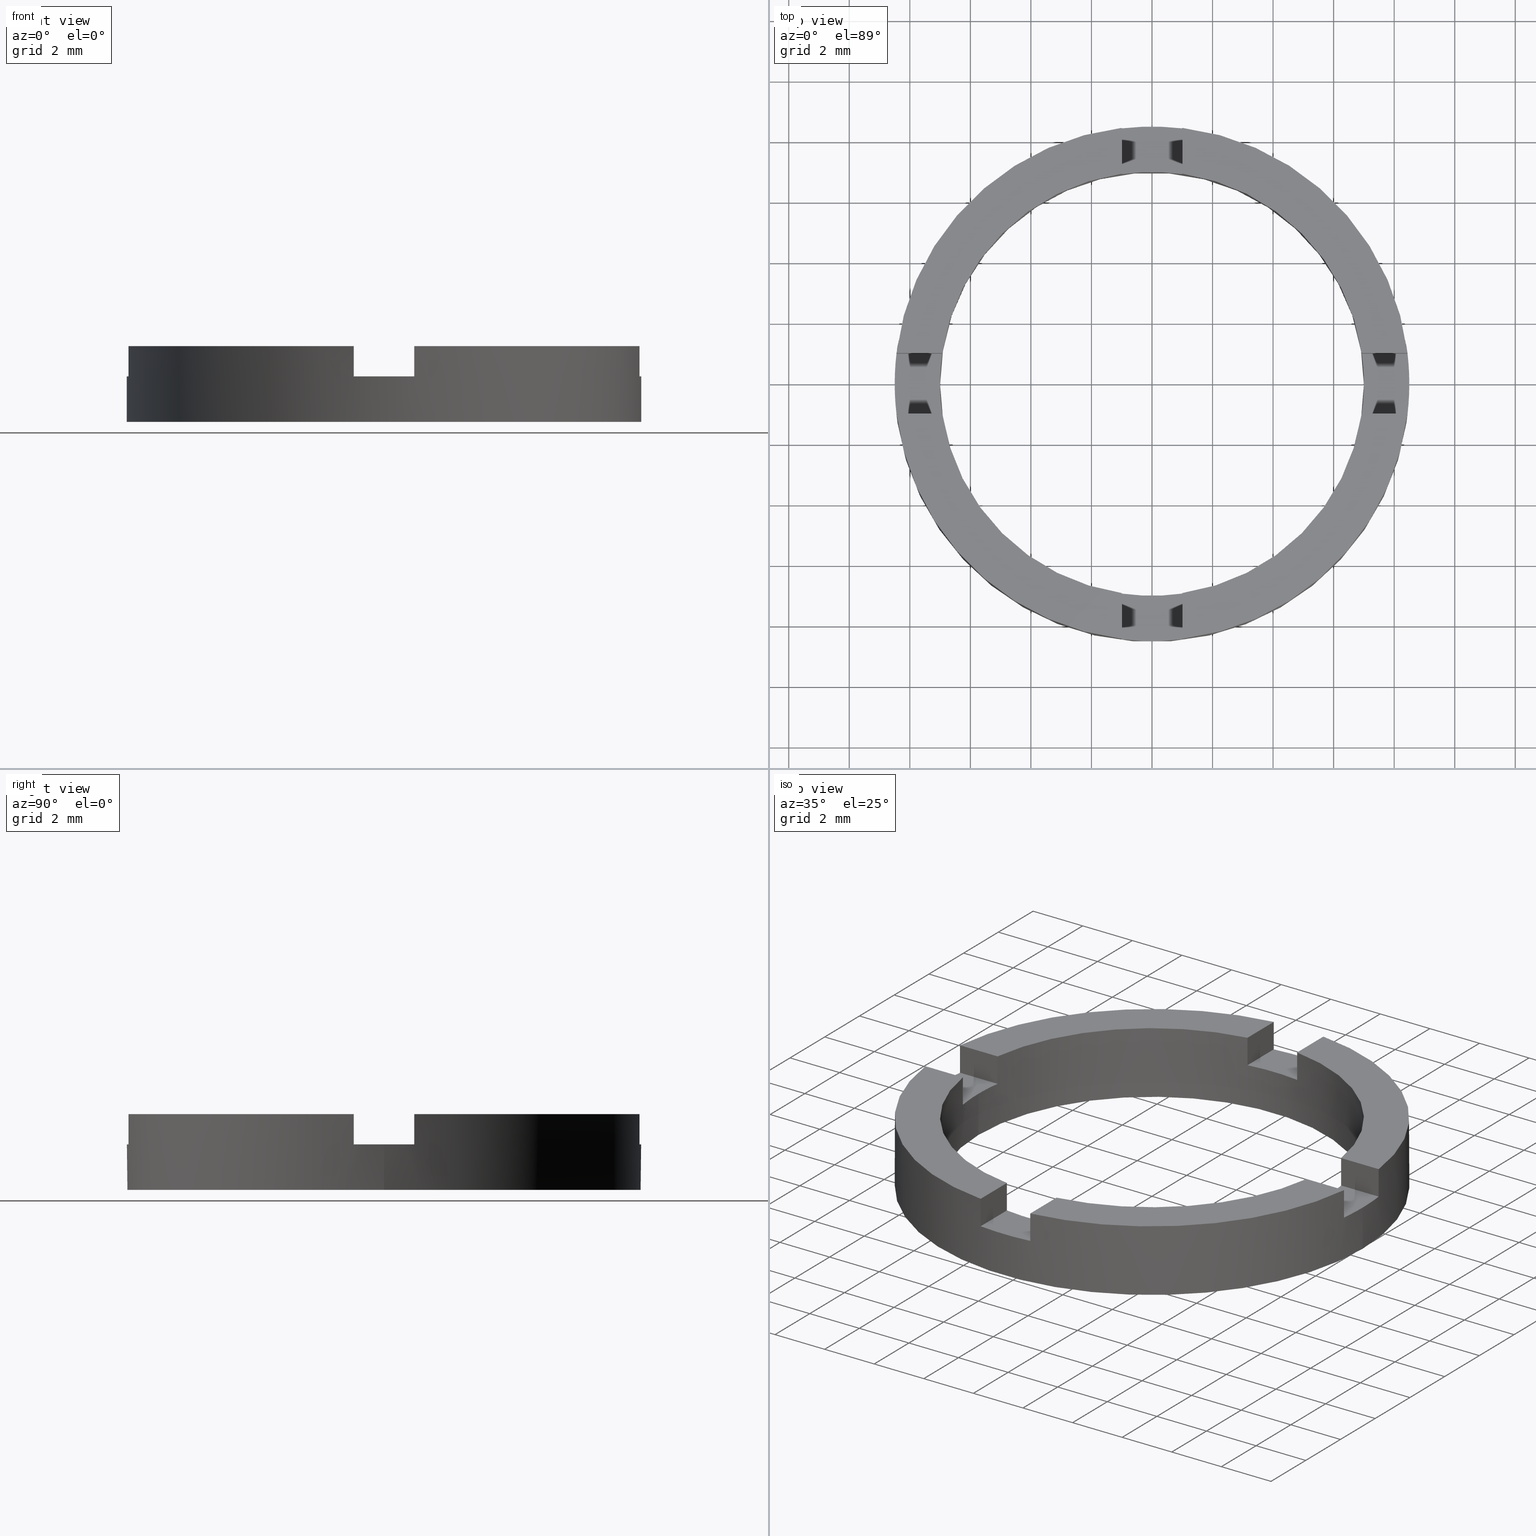
[diagram: canonical four-view strip — front | top / right | iso, engineering-drawing reading convention]
A machine part, canonical four-view strip (front | top / right | iso — engineering-drawing reading convention). The complete STEP part file that produces these views, byte-faithful:
ISO-10303-21;
HEADER;
FILE_DESCRIPTION (( 'STEP AP203' ),
    '1' );
FILE_NAME ('514041.step',
    '2024-12-26T02:31:54',
    ( 'MSI' ),
    ( '' ),
    'SwSTEP 2.0',
    'SolidWorks 2020',
    '' );
FILE_SCHEMA (( 'CONFIG_CONTROL_DESIGN' ));
ENDSEC;

DATA;
#1 = LINE ( 'NONE', #619, #499 ) ;
#2 = DATE_AND_TIME ( #285, #230 ) ;
#3 = ORIENTED_EDGE ( 'NONE', *, *, #400, .F. ) ;
#4 = CARTESIAN_POINT ( 'NONE',  ( 3.750063984832210975E-15, 0.9999999999999988898, 2.500000000000000000 ) ) ;
#5 = CIRCLE ( 'NONE', #361, 8.500000000000000000 ) ;
#6 = LINE ( 'NONE', #130, #551 ) ;
#7 = ORIENTED_EDGE ( 'NONE', *, *, #138, .F. ) ;
#8 = VERTEX_POINT ( 'NONE', #76 ) ;
#9 = LINE ( 'NONE', #83, #497 ) ;
#10 = ORIENTED_EDGE ( 'NONE', *, *, #91, .F. ) ;
#11 = ORIENTED_EDGE ( 'NONE', *, *, #320, .T. ) ;
#12 = FACE_OUTER_BOUND ( 'NONE', #104, .T. ) ;
#13 = ORIENTED_EDGE ( 'NONE', *, *, #191, .T. ) ;
#14 = CARTESIAN_POINT ( 'NONE',  ( -0.9999999999999986677, 0.000000000000000000, 2.500000000000000000 ) ) ;
#15 = EDGE_LOOP ( 'NONE', ( #225, #719 ) ) ;
#16 = VERTEX_POINT ( 'NONE', #217 ) ;
#17 = DIRECTION ( 'NONE',  ( 0.000000000000000000, 0.000000000000000000, 1.000000000000000000 ) ) ;
#18 = ORIENTED_EDGE ( 'NONE', *, *, #456, .F. ) ;
#19 = PERSON_AND_ORGANIZATION ( #97, #280 ) ;
#20 = EDGE_CURVE ( 'NONE', #660, #282, #223, .T. ) ;
#21 = EDGE_LOOP ( 'NONE', ( #253, #698, #503, #543 ) ) ;
#22 = VECTOR ( 'NONE', #57, 1000.000000000000000 ) ;
#23 = LINE ( 'NONE', #109, #279 ) ;
#24 = APPROVAL_PERSON_ORGANIZATION ( #542, #183, #639 ) ;
#25 = FACE_OUTER_BOUND ( 'NONE', #667, .T. ) ;
#26 = APPROVAL_DATE_TIME ( #260, #183 ) ;
#27 = DIRECTION ( 'NONE',  ( 1.000000000000000000, 0.000000000000000000, -0.000000000000000000 ) ) ;
#28 = LINE ( 'NONE', #4, #589 ) ;
#29 = LINE ( 'NONE', #339, #572 ) ;
#30 = LINE ( 'NONE', #467, #557 ) ;
#31 = LINE ( 'NONE', #349, #299 ) ;
#32 = CARTESIAN_POINT ( 'NONE',  ( 6.928203230275513214, 0.9999999999999729106, 1.500000000000000000 ) ) ;
#33 = AXIS2_PLACEMENT_3D ( 'NONE', #209, #325, #688 ) ;
#34 = VECTOR ( 'NONE', #391, 1000.000000000000000 ) ;
#35 = LINE ( 'NONE', #210, #66 ) ;
#36 = LINE ( 'NONE', #652, #42 ) ;
#37 = VECTOR ( 'NONE', #564, 1000.000000000000000 ) ;
#38 = APPROVAL_DATE_TIME ( #579, #122 ) ;
#39 = DATE_TIME_ROLE ( 'classification_date' ) ;
#40 = FACE_OUTER_BOUND ( 'NONE', #779, .T. ) ;
#41 = CIRCLE ( 'NONE', #307, 8.500000000000000000 ) ;
#42 = VECTOR ( 'NONE', #754, 1000.000000000000000 ) ;
#43 = ADVANCED_FACE ( 'NONE', ( #276 ), #560, .T. ) ;
#44 = LINE ( 'NONE', #125, #329 ) ;
#45 = AXIS2_PLACEMENT_3D ( 'NONE', #691, #317, #756 ) ;
#46 = LINE ( 'NONE', #192, #51 ) ;
#47 = VECTOR ( 'NONE', #82, 1000.000000000000000 ) ;
#48 = CIRCLE ( 'NONE', #627, 8.500000000000000000 ) ;
#49 = CIRCLE ( 'NONE', #725, 7.000000000000000000 ) ;
#50 = DIRECTION ( 'NONE',  ( -0.000000000000000000, -0.000000000000000000, 1.000000000000000000 ) ) ;
#51 = VECTOR ( 'NONE', #290, 1000.000000000000000 ) ;
#52 = LINE ( 'NONE', #421, #47 ) ;
#53 = EDGE_CURVE ( 'NONE', #501, #660, #1, .T. ) ;
#54 = VECTOR ( 'NONE', #136, 1000.000000000000000 ) ;
#55 = DIRECTION ( 'NONE',  ( -0.000000000000000000, 0.000000000000000000, 1.000000000000000000 ) ) ;
#56 = LINE ( 'NONE', #383, #308 ) ;
#57 = DIRECTION ( 'NONE',  ( -0.000000000000000000, -0.000000000000000000, 1.000000000000000000 ) ) ;
#58 = CIRCLE ( 'NONE', #703, 8.500000000000000000 ) ;
#59 = ADVANCED_FACE ( 'NONE', ( #268 ), #777, .T. ) ;
#60 = CARTESIAN_POINT ( 'NONE',  ( 0.000000000000000000, 0.000000000000000000, 1.500000000000000000 ) ) ;
#61 = CIRCLE ( 'NONE', #655, 7.000000000000000000 ) ;
#62 = CIRCLE ( 'NONE', #77, 8.500000000000000000 ) ;
#63 = CARTESIAN_POINT ( 'NONE',  ( 0.000000000000000000, 0.000000000000000000, 2.500000000000000000 ) ) ;
#64 = LINE ( 'NONE', #414, #348 ) ;
#65 = CIRCLE ( 'NONE', #172, 8.500000000000000000 ) ;
#66 = VECTOR ( 'NONE', #642, 1000.000000000000000 ) ;
#67 = AXIS2_PLACEMENT_3D ( 'NONE', #710, #427, #463 ) ;
#68 = ADVANCED_FACE ( 'NONE', ( #284 ), #378, .T. ) ;
#69 = EDGE_CURVE ( 'NONE', #524, #740, #749, .T. ) ;
#70 = LINE ( 'NONE', #410, #72 ) ;
#71 = CARTESIAN_POINT ( 'NONE',  ( 0.000000000000000000, 0.000000000000000000, 2.500000000000000000 ) ) ;
#72 = VECTOR ( 'NONE', #418, 1000.000000000000000 ) ;
#73 = EDGE_LOOP ( 'NONE', ( #3, #113, #111, #278, #395, #726, #7, #535, #750, #738, #766, #270 ) ) ;
#74 = ADVANCED_FACE ( 'NONE', ( #239 ), #643, .F. ) ;
#75 = CARTESIAN_POINT ( 'NONE',  ( 0.000000000000000000, 0.000000000000000000, 2.500000000000000000 ) ) ;
#76 = CARTESIAN_POINT ( 'NONE',  ( -8.500000000000000000, 0.000000000000000000, 0.000000000000000000 ) ) ;
#77 = AXIS2_PLACEMENT_3D ( 'NONE', #300, #55, #103 ) ;
#78 = DIRECTION ( 'NONE',  ( 0.000000000000000000, 0.000000000000000000, 1.000000000000000000 ) ) ;
#79 = DIRECTION ( 'NONE',  ( 1.000000000000000000, 0.000000000000000000, -0.000000000000000000 ) ) ;
#80 = DIRECTION ( 'NONE',  ( -0.000000000000000000, -0.000000000000000000, -1.000000000000000000 ) ) ;
#81 = CARTESIAN_POINT ( 'NONE',  ( 0.000000000000000000, 0.000000000000000000, 1.500000000000000000 ) ) ;
#82 = DIRECTION ( 'NONE',  ( 1.000000000000000000, -3.737308665155915423E-15, 0.000000000000000000 ) ) ;
#83 = CARTESIAN_POINT ( 'NONE',  ( -8.500000000000000000, 0.000000000000000000, 2.500000000000000000 ) ) ;
#84 = DIRECTION ( 'NONE',  ( 0.000000000000000000, 1.000000000000000000, -0.000000000000000000 ) ) ;
#85 = CC_DESIGN_APPROVAL ( #189, ( #159 ) ) ;
#86 = EDGE_CURVE ( 'NONE', #145, #201, #23, .T. ) ;
#87 = PLANE ( 'NONE',  #291 ) ;
#88 = CARTESIAN_POINT ( 'NONE',  ( 7.000000000000000000, 8.572527594031473190E-16, 0.000000000000000000 ) ) ;
#89 = CARTESIAN_POINT ( 'NONE',  ( 0.000000000000000000, 0.000000000000000000, 0.000000000000000000 ) ) ;
#90 = CC_DESIGN_SECURITY_CLASSIFICATION ( #438, ( #159 ) ) ;
#91 = EDGE_CURVE ( 'NONE', #502, #532, #550, .T. ) ;
#92 = EDGE_CURVE ( 'NONE', #241, #110, #505, .T. ) ;
#93 = CARTESIAN_POINT ( 'NONE',  ( 6.928203230275513214, 0.9999999999999729106, 2.500000000000000000 ) ) ;
#94 = APPROVAL_STATUS ( 'not_yet_approved' ) ;
#95 = EDGE_CURVE ( 'NONE', #532, #496, #243, .T. ) ;
#96 = EDGE_CURVE ( 'NONE', #522, #553, #778, .T. ) ;
#97 = PERSON ( 'δָ��', 'δָ��', 'δָ��', ('δָ��'), ('δָ��'), ('δָ��') ) ;
#98 = ADVANCED_FACE ( 'NONE', ( #533 ), #426, .T. ) ;
#99 = EDGE_CURVE ( 'NONE', #127, #759, #488, .T. ) ;
#100 = CARTESIAN_POINT ( 'NONE',  ( -8.440971508067063311, 1.000000000000030642, 1.500000000000000000 ) ) ;
#101 = DIRECTION ( 'NONE',  ( 1.000000000000000000, 0.000000000000000000, 0.000000000000000000 ) ) ;
#102 = ADVANCED_FACE ( 'NONE', ( #256 ), #168, .F. ) ;
#103 = DIRECTION ( 'NONE',  ( 1.000000000000000000, 0.000000000000000000, 0.000000000000000000 ) ) ;
#104 = EDGE_LOOP ( 'NONE', ( #519, #476, #139, #663 ) ) ;
#105 =( NAMED_UNIT ( * ) SI_UNIT ( $, .STERADIAN. ) SOLID_ANGLE_UNIT ( ) );
#106 = CC_DESIGN_PERSON_AND_ORGANIZATION_ASSIGNMENT ( #782, #678, ( #438 ) ) ;
#107 = EDGE_CURVE ( 'NONE', #229, #377, #5, .T. ) ;
#108 = DIRECTION ( 'NONE',  ( -0.000000000000000000, -0.000000000000000000, 1.000000000000000000 ) ) ;
#109 = CARTESIAN_POINT ( 'NONE',  ( -3.737308665155919368E-15, -1.000000000000001110, 2.500000000000000000 ) ) ;
#110 = VERTEX_POINT ( 'NONE', #114 ) ;
#111 = ORIENTED_EDGE ( 'NONE', *, *, #445, .T. ) ;
#112 = CARTESIAN_POINT ( 'NONE',  ( 0.000000000000000000, 0.000000000000000000, 1.500000000000000000 ) ) ;
#113 = ORIENTED_EDGE ( 'NONE', *, *, #319, .T. ) ;
#114 = CARTESIAN_POINT ( 'NONE',  ( 8.440971508067063311, -1.000000000000032641, 1.500000000000000000 ) ) ;
#115 = CARTESIAN_POINT ( 'NONE',  ( 0.000000000000000000, 0.000000000000000000, 2.500000000000000000 ) ) ;
#116 = DIRECTION ( 'NONE',  ( -0.000000000000000000, -0.000000000000000000, 1.000000000000000000 ) ) ;
#117 = ADVANCED_FACE ( 'NONE', ( #272 ), #647, .F. ) ;
#118 = CARTESIAN_POINT ( 'NONE',  ( -0.9999999999999986677, 0.000000000000000000, 1.500000000000000000 ) ) ;
#119 = CARTESIAN_POINT ( 'NONE',  ( 1.000000000000001332, 6.928203230275509661, 2.500000000000000000 ) ) ;
#120 = ORIENTED_EDGE ( 'NONE', *, *, #620, .F. ) ;
#121 = DIRECTION ( 'NONE',  ( -0.000000000000000000, 0.000000000000000000, 1.000000000000000000 ) ) ;
#122 = APPROVAL ( #634, 'δָ��' ) ;
#123 = AXIS2_PLACEMENT_3D ( 'NONE', #429, #219, #337 ) ;
#124 = EDGE_CURVE ( 'NONE', #144, #740, #737, .T. ) ;
#125 = CARTESIAN_POINT ( 'NONE',  ( -0.9999999999999986677, -8.440971508067066864, 1.500000000000000000 ) ) ;
#126 = CARTESIAN_POINT ( 'NONE',  ( 0.000000000000000000, 0.000000000000000000, 1.500000000000000000 ) ) ;
#127 = VERTEX_POINT ( 'NONE', #416 ) ;
#128 = VERTEX_POINT ( 'NONE', #462 ) ;
#129 = CARTESIAN_POINT ( 'NONE',  ( -8.500000000000000000, 0.000000000000000000, 1.500000000000000000 ) ) ;
#130 = CARTESIAN_POINT ( 'NONE',  ( 1.000000000000001332, -6.928203230275509661, 1.500000000000000000 ) ) ;
#131 = CC_DESIGN_APPROVAL ( #122, ( #438 ) ) ;
#132 = AXIS2_PLACEMENT_3D ( 'NONE', #721, #729, #355 ) ;
#133 = SECURITY_CLASSIFICATION_LEVEL ( 'unclassified' ) ;
#134 = DIRECTION ( 'NONE',  ( 0.000000000000000000, 0.000000000000000000, 1.000000000000000000 ) ) ;
#135 = VERTEX_POINT ( 'NONE', #616 ) ;
#136 = DIRECTION ( 'NONE',  ( -0.000000000000000000, -0.000000000000000000, 1.000000000000000000 ) ) ;
#137 = CARTESIAN_POINT ( 'NONE',  ( 7.000000000000000000, 8.572527594031473190E-16, 1.500000000000000000 ) ) ;
#138 = EDGE_CURVE ( 'NONE', #659, #489, #48, .T. ) ;
#139 = ORIENTED_EDGE ( 'NONE', *, *, #407, .T. ) ;
#140 = APPROVAL_ROLE ( '' ) ;
#141 = ORIENTED_EDGE ( 'NONE', *, *, #69, .F. ) ;
#142 = ORIENTED_EDGE ( 'NONE', *, *, #563, .T. ) ;
#143 = ORIENTED_EDGE ( 'NONE', *, *, #220, .T. ) ;
#144 = VERTEX_POINT ( 'NONE', #523 ) ;
#145 = VERTEX_POINT ( 'NONE', #157 ) ;
#146 = DATE_TIME_ROLE ( 'creation_date' ) ;
#147 = AXIS2_PLACEMENT_3D ( 'NONE', #81, #121, #167 ) ;
#148 = EDGE_CURVE ( 'NONE', #128, #252, #323, .T. ) ;
#149 = ORIENTED_EDGE ( 'NONE', *, *, #138, .T. ) ;
#150 = ORIENTED_EDGE ( 'NONE', *, *, #173, .F. ) ;
#151 = CARTESIAN_POINT ( 'NONE',  ( 1.000000000000001332, 6.928203230275509661, 1.500000000000000000 ) ) ;
#152 = DIRECTION ( 'NONE',  ( 0.000000000000000000, -0.000000000000000000, -1.000000000000000000 ) ) ;
#153 = CARTESIAN_POINT ( 'NONE',  ( 1.000000000000001332, 8.440971508067066864, 2.500000000000000000 ) ) ;
#154 = DIRECTION ( 'NONE',  ( 0.000000000000000000, 1.000000000000000000, -0.000000000000000000 ) ) ;
#155 = ADVANCED_BREP_SHAPE_REPRESENTATION ( '514041', ( #287, #389 ), #434 ) ;
#156 = AXIS2_PLACEMENT_3D ( 'NONE', #637, #152, #101 ) ;
#157 = CARTESIAN_POINT ( 'NONE',  ( 6.928203230275506108, -1.000000000000026867, 2.500000000000000000 ) ) ;
#158 = CARTESIAN_POINT ( 'NONE',  ( 8.500000000000000000, 1.040949779275250140E-15, 0.000000000000000000 ) ) ;
#159 = PRODUCT_DEFINITION_FORMATION_WITH_SPECIFIED_SOURCE ( '�κ�', '', #723, .NOT_KNOWN. ) ;
#160 = DIRECTION ( 'NONE',  ( -0.000000000000000000, -0.000000000000000000, -1.000000000000000000 ) ) ;
#161 = DIRECTION ( 'NONE',  ( 1.000000000000000000, -3.737308665155915423E-15, 0.000000000000000000 ) ) ;
#162 = CARTESIAN_POINT ( 'NONE',  ( 0.000000000000000000, 0.000000000000000000, 2.500000000000000000 ) ) ;
#163 = DIRECTION ( 'NONE',  ( 1.000000000000000000, 0.000000000000000000, -0.000000000000000000 ) ) ;
#164 = DIRECTION ( 'NONE',  ( 0.000000000000000000, 0.000000000000000000, -1.000000000000000000 ) ) ;
#165 = CARTESIAN_POINT ( 'NONE',  ( -8.440971508067063311, 1.000000000000030642, 1.500000000000000000 ) ) ;
#166 = CARTESIAN_POINT ( 'NONE',  ( 6.928203230275506108, -1.000000000000026867, 1.500000000000000000 ) ) ;
#167 = DIRECTION ( 'NONE',  ( 1.000000000000000000, 0.000000000000000000, 0.000000000000000000 ) ) ;
#168 = PLANE ( 'NONE',  #123 ) ;
#169 = DIRECTION ( 'NONE',  ( -0.000000000000000000, 0.000000000000000000, 1.000000000000000000 ) ) ;
#170 = CARTESIAN_POINT ( 'NONE',  ( -0.9999999999999986677, -8.440971508067066864, 1.500000000000000000 ) ) ;
#171 = CARTESIAN_POINT ( 'NONE',  ( -6.928203230275506108, 1.000000000000024869, 2.500000000000000000 ) ) ;
#172 = AXIS2_PLACEMENT_3D ( 'NONE', #71, #773, #370 ) ;
#173 = EDGE_CURVE ( 'NONE', #110, #226, #304, .T. ) ;
#174 = DIRECTION ( 'NONE',  ( 1.000000000000000000, 0.000000000000000000, 0.000000000000000000 ) ) ;
#175 = DIRECTION ( 'NONE',  ( 1.000000000000000000, -3.552713678800500929E-15, 0.000000000000000000 ) ) ;
#176 = ORIENTED_EDGE ( 'NONE', *, *, #605, .F. ) ;
#177 = AXIS2_PLACEMENT_3D ( 'NONE', #755, #453, #658 ) ;
#178 = ORIENTED_EDGE ( 'NONE', *, *, #190, .T. ) ;
#179 = CARTESIAN_POINT ( 'NONE',  ( 1.000000000000001110, -6.928203230275508773, 1.500000000000000000 ) ) ;
#180 = ORIENTED_EDGE ( 'NONE', *, *, #693, .F. ) ;
#181 = ORIENTED_EDGE ( 'NONE', *, *, #671, .T. ) ;
#182 = PERSON_AND_ORGANIZATION_ROLE ( 'design_supplier' ) ;
#183 = APPROVAL ( #607, 'δָ��' ) ;
#184 = AXIS2_PLACEMENT_3D ( 'NONE', #356, #360, #399 ) ;
#185 = ORIENTED_EDGE ( 'NONE', *, *, #91, .T. ) ;
#186 = ORIENTED_EDGE ( 'NONE', *, *, #92, .F. ) ;
#187 =( LENGTH_UNIT ( ) NAMED_UNIT ( * ) SI_UNIT ( .MILLI., .METRE. ) );
#188 = DIRECTION ( 'NONE',  ( 0.000000000000000000, 0.000000000000000000, 1.000000000000000000 ) ) ;
#189 = APPROVAL ( #94, 'δָ��' ) ;
#190 = EDGE_CURVE ( 'NONE', #524, #241, #582, .T. ) ;
#191 = EDGE_CURVE ( 'NONE', #135, #234, #586, .T. ) ;
#192 = CARTESIAN_POINT ( 'NONE',  ( 1.000000000000001332, 8.440971508067066864, 1.500000000000000000 ) ) ;
#193 = ORIENTED_EDGE ( 'NONE', *, *, #267, .F. ) ;
#194 = CARTESIAN_POINT ( 'NONE',  ( 3.750063984832210975E-15, 0.9999999999999988898, 1.500000000000000000 ) ) ;
#195 = ADVANCED_FACE ( 'NONE', ( #295 ), #630, .T. ) ;
#196 = ORIENTED_EDGE ( 'NONE', *, *, #371, .F. ) ;
#197 = AXIS2_PLACEMENT_3D ( 'NONE', #768, #751, #368 ) ;
#198 = VERTEX_POINT ( 'NONE', #590 ) ;
#199 = EDGE_CURVE ( 'NONE', #110, #201, #565, .T. ) ;
#200 = ORIENTED_EDGE ( 'NONE', *, *, #717, .T. ) ;
#201 = VERTEX_POINT ( 'NONE', #712 ) ;
#202 = EDGE_LOOP ( 'NONE', ( #548, #18, #200, #490 ) ) ;
#203 = DIRECTION ( 'NONE',  ( -1.000000000000000000, 0.000000000000000000, 0.000000000000000000 ) ) ;
#204 = ADVANCED_FACE ( 'NONE', ( #318 ), #680, .T. ) ;
#205 = CARTESIAN_POINT ( 'NONE',  ( 0.000000000000000000, 0.000000000000000000, 1.500000000000000000 ) ) ;
#206 = ORIENTED_EDGE ( 'NONE', *, *, #305, .F. ) ;
#207 = ORIENTED_EDGE ( 'NONE', *, *, #173, .T. ) ;
#208 = ORIENTED_EDGE ( 'NONE', *, *, #449, .T. ) ;
#209 = CARTESIAN_POINT ( 'NONE',  ( 1.000000000000001332, 1.275531967630006848E-17, 1.500000000000000000 ) ) ;
#210 = CARTESIAN_POINT ( 'NONE',  ( -0.9999999999999986677, 0.000000000000000000, 1.500000000000000000 ) ) ;
#211 = DIRECTION ( 'NONE',  ( 1.000000000000000000, 0.000000000000000000, 0.000000000000000000 ) ) ;
#212 = CARTESIAN_POINT ( 'NONE',  ( 7.000000000000000000, 8.572527594031473190E-16, 2.500000000000000000 ) ) ;
#213 = ADVANCED_FACE ( 'NONE', ( #587 ), #306, .T. ) ;
#214 = DIRECTION ( 'NONE',  ( -0.000000000000000000, -0.000000000000000000, 1.000000000000000000 ) ) ;
#215 = DIRECTION ( 'NONE',  ( 1.000000000000000000, 0.000000000000000000, 0.000000000000000000 ) ) ;
#216 = CARTESIAN_POINT ( 'NONE',  ( -0.9999999999999986677, 6.928203230275509661, 1.500000000000000000 ) ) ;
#217 = CARTESIAN_POINT ( 'NONE',  ( 1.000000000000001332, -8.440971508067066864, 2.500000000000000000 ) ) ;
#218 = PRODUCT_RELATED_PRODUCT_CATEGORY ( 'detail', '', ( #723 ) ) ;
#219 = DIRECTION ( 'NONE',  ( -3.737308665155916212E-15, -1.000000000000000000, 0.000000000000000000 ) ) ;
#220 = EDGE_CURVE ( 'NONE', #241, #145, #288, .T. ) ;
#221 = CARTESIAN_POINT ( 'NONE',  ( 0.000000000000000000, 0.000000000000000000, 0.000000000000000000 ) ) ;
#222 = PLANE ( 'NONE',  #734 ) ;
#223 = CIRCLE ( 'NONE', #392, 8.500000000000000000 ) ;
#224 = EDGE_LOOP ( 'NONE', ( #728, #752, #178, #518, #207, #546 ) ) ;
#225 = ORIENTED_EDGE ( 'NONE', *, *, #372, .F. ) ;
#226 = VERTEX_POINT ( 'NONE', #604 ) ;
#227 = EDGE_LOOP ( 'NONE', ( #746, #193, #704, #411 ) ) ;
#228 = VERTEX_POINT ( 'NONE', #636 ) ;
#229 = VERTEX_POINT ( 'NONE', #100 ) ;
#230 = LOCAL_TIME ( 10, 31, 54.00000000000000000, #547 ) ;
#231 = ORIENTED_EDGE ( 'NONE', *, *, #677, .T. ) ;
#232 = DIRECTION ( 'NONE',  ( -0.000000000000000000, -0.000000000000000000, 1.000000000000000000 ) ) ;
#233 = DIRECTION ( 'NONE',  ( -0.000000000000000000, 0.000000000000000000, 1.000000000000000000 ) ) ;
#234 = VERTEX_POINT ( 'NONE', #171 ) ;
#235 = CIRCLE ( 'NONE', #745, 7.000000000000000000 ) ;
#236 = ORIENTED_EDGE ( 'NONE', *, *, #199, .T. ) ;
#237 = VECTOR ( 'NONE', #328, 1000.000000000000000 ) ;
#238 = ORIENTED_EDGE ( 'NONE', *, *, #99, .F. ) ;
#239 = FACE_OUTER_BOUND ( 'NONE', #227, .T. ) ;
#240 = PERSON_AND_ORGANIZATION ( #97, #280 ) ;
#241 = VERTEX_POINT ( 'NONE', #166 ) ;
#242 = EDGE_CURVE ( 'NONE', #135, #659, #56, .T. ) ;
#243 = CIRCLE ( 'NONE', #425, 7.000000000000000000 ) ;
#244 = PERSON_AND_ORGANIZATION ( #97, #280 ) ;
#245 = ORIENTED_EDGE ( 'NONE', *, *, #242, .T. ) ;
#246 = DIRECTION ( 'NONE',  ( -1.000000000000000000, 0.000000000000000000, 0.000000000000000000 ) ) ;
#247 = ORIENTED_EDGE ( 'NONE', *, *, #424, .T. ) ;
#248 = ORIENTED_EDGE ( 'NONE', *, *, #485, .T. ) ;
#249 = ORIENTED_EDGE ( 'NONE', *, *, #334, .F. ) ;
#250 = LOCAL_TIME ( 10, 31, 54.00000000000000000, #775 ) ;
#251 = ORIENTED_EDGE ( 'NONE', *, *, #493, .T. ) ;
#252 = VERTEX_POINT ( 'NONE', #469 ) ;
#253 = ORIENTED_EDGE ( 'NONE', *, *, #320, .F. ) ;
#254 = COORDINATED_UNIVERSAL_TIME_OFFSET ( 8, 0, .AHEAD. ) ;
#255 = ORIENTED_EDGE ( 'NONE', *, *, #605, .T. ) ;
#256 = FACE_OUTER_BOUND ( 'NONE', #538, .T. ) ;
#257 = EDGE_LOOP ( 'NONE', ( #549, #375, #783, #757, #408, #263 ) ) ;
#258 = CARTESIAN_POINT ( 'NONE',  ( -0.9999999999999986677, 6.928203230275509661, 1.500000000000000000 ) ) ;
#259 = VERTEX_POINT ( 'NONE', #216 ) ;
#260 = DATE_AND_TIME ( #277, #558 ) ;
#261 = ORIENTED_EDGE ( 'NONE', *, *, #242, .F. ) ;
#262 = PRODUCT_DEFINITION ( 'δ֪', '', #159, #679 ) ;
#263 = ORIENTED_EDGE ( 'NONE', *, *, #96, .T. ) ;
#264 = COORDINATED_UNIVERSAL_TIME_OFFSET ( 8, 0, .AHEAD. ) ;
#265 = ORIENTED_EDGE ( 'NONE', *, *, #545, .T. ) ;
#266 = UNCERTAINTY_MEASURE_WITH_UNIT (LENGTH_MEASURE( 1.000000000000000082E-05 ), #187, 'distance_accuracy_value', 'NONE');
#267 = EDGE_CURVE ( 'NONE', #724, #282, #46, .T. ) ;
#268 = FACE_OUTER_BOUND ( 'NONE', #224, .T. ) ;
#269 = LINE ( 'NONE', #382, #509 ) ;
#270 = ORIENTED_EDGE ( 'NONE', *, *, #53, .F. ) ;
#271 = EDGE_CURVE ( 'NONE', #724, #198, #313, .T. ) ;
#272 = FACE_OUTER_BOUND ( 'NONE', #507, .T. ) ;
#273 = CALENDAR_DATE ( 2024, 26, 12 ) ;
#274 = EDGE_LOOP ( 'NONE', ( #281, #255, #185, #513 ) ) ;
#275 = APPROVAL_ROLE ( '' ) ;
#276 = FACE_OUTER_BOUND ( 'NONE', #419, .T. ) ;
#277 = CALENDAR_DATE ( 2024, 26, 12 ) ;
#278 = ORIENTED_EDGE ( 'NONE', *, *, #715, .F. ) ;
#279 = VECTOR ( 'NONE', #161, 1000.000000000000000 ) ;
#280 = ORGANIZATION ( 'δָ��', 'δָ��', '' ) ;
#281 = ORIENTED_EDGE ( 'NONE', *, *, #545, .F. ) ;
#282 = VERTEX_POINT ( 'NONE', #153 ) ;
#283 = DATE_AND_TIME ( #517, #250 ) ;
#284 = FACE_OUTER_BOUND ( 'NONE', #736, .T. ) ;
#285 = CALENDAR_DATE ( 2024, 26, 12 ) ;
#286 = ORIENTED_EDGE ( 'NONE', *, *, #686, .T. ) ;
#287 = MANIFOLD_SOLID_BREP ( '�г�-����1', #412 ) ;
#288 = LINE ( 'NONE', #440, #293 ) ;
#289 = COORDINATED_UNIVERSAL_TIME_OFFSET ( 8, 0, .AHEAD. ) ;
#290 = DIRECTION ( 'NONE',  ( -0.000000000000000000, -0.000000000000000000, 1.000000000000000000 ) ) ;
#291 = AXIS2_PLACEMENT_3D ( 'NONE', #648, #657, #689 ) ;
#292 = LOCAL_TIME ( 10, 31, 54.00000000000000000, #254 ) ;
#293 = VECTOR ( 'NONE', #50, 1000.000000000000000 ) ;
#294 = LINE ( 'NONE', #151, #22 ) ;
#295 = FACE_OUTER_BOUND ( 'NONE', #747, .T. ) ;
#296 = PERSON_AND_ORGANIZATION ( #97, #280 ) ;
#297 = LINE ( 'NONE', #165, #593 ) ;
#298 = DIRECTION ( 'NONE',  ( -0.000000000000000000, -0.000000000000000000, 1.000000000000000000 ) ) ;
#299 = VECTOR ( 'NONE', #487, 1000.000000000000000 ) ;
#300 = CARTESIAN_POINT ( 'NONE',  ( 0.000000000000000000, 0.000000000000000000, 1.500000000000000000 ) ) ;
#301 = CARTESIAN_POINT ( 'NONE',  ( 1.000000000000001332, 1.275531967630006848E-17, 1.500000000000000000 ) ) ;
#302 = LINE ( 'NONE', #591, #570 ) ;
#303 = APPLICATION_CONTEXT ( 'configuration controlled 3d designs of mechanical parts and assemblies' ) ;
#304 = CIRCLE ( 'NONE', #439, 8.500000000000000000 ) ;
#305 = EDGE_CURVE ( 'NONE', #454, #282, #314, .T. ) ;
#306 = CYLINDRICAL_SURFACE ( 'NONE', #132, 8.500000000000000000 ) ;
#307 = AXIS2_PLACEMENT_3D ( 'NONE', #89, #134, #613 ) ;
#308 = VECTOR ( 'NONE', #84, 1000.000000000000000 ) ;
#309 = DIRECTION ( 'NONE',  ( 0.000000000000000000, 0.000000000000000000, 1.000000000000000000 ) ) ;
#310 = CIRCLE ( 'NONE', #588, 8.500000000000000000 ) ;
#311 = ADVANCED_FACE ( 'NONE', ( #327 ), #381, .T. ) ;
#312 = FACE_BOUND ( 'NONE', #446, .T. ) ;
#313 = CIRCLE ( 'NONE', #184, 8.500000000000000000 ) ;
#314 = LINE ( 'NONE', #701, #575 ) ;
#315 = DIRECTION ( 'NONE',  ( -0.000000000000000000, -0.000000000000000000, 1.000000000000000000 ) ) ;
#316 = CARTESIAN_POINT ( 'NONE',  ( 1.000000000000001332, 1.275531967630006848E-17, 2.500000000000000000 ) ) ;
#317 = DIRECTION ( 'NONE',  ( 0.000000000000000000, -0.000000000000000000, -1.000000000000000000 ) ) ;
#318 = FACE_OUTER_BOUND ( 'NONE', #21, .T. ) ;
#319 = EDGE_CURVE ( 'NONE', #226, #673, #583, .T. ) ;
#320 = EDGE_CURVE ( 'NONE', #478, #252, #52, .T. ) ;
#321 = LINE ( 'NONE', #584, #562 ) ;
#322 = ADVANCED_FACE ( 'NONE', ( #40 ), #87, .T. ) ;
#323 = LINE ( 'NONE', #684, #559 ) ;
#324 = DIRECTION ( 'NONE',  ( 1.000000000000000000, 0.000000000000000000, 0.000000000000000000 ) ) ;
#325 = DIRECTION ( 'NONE',  ( 1.000000000000000000, 1.275531967630005153E-17, 0.000000000000000000 ) ) ;
#326 = CARTESIAN_POINT ( 'NONE',  ( 1.000000000000001332, 1.275531967630006848E-17, 1.500000000000000000 ) ) ;
#327 = FACE_OUTER_BOUND ( 'NONE', #762, .T. ) ;
#328 = DIRECTION ( 'NONE',  ( -0.000000000000000000, -0.000000000000000000, -1.000000000000000000 ) ) ;
#329 = VECTOR ( 'NONE', #232, 1000.000000000000000 ) ;
#330 = FACE_OUTER_BOUND ( 'NONE', #15, .T. ) ;
#331 = CIRCLE ( 'NONE', #477, 8.500000000000000000 ) ;
#332 = PLANE ( 'NONE',  #539 ) ;
#333 = FACE_OUTER_BOUND ( 'NONE', #699, .T. ) ;
#334 = EDGE_CURVE ( 'NONE', #520, #660, #28, .T. ) ;
#335 = CIRCLE ( 'NONE', #646, 7.000000000000000000 ) ;
#336 = VECTOR ( 'NONE', #116, 1000.000000000000000 ) ;
#337 = DIRECTION ( 'NONE',  ( 1.000000000000000000, -3.737308665155916212E-15, 0.000000000000000000 ) ) ;
#338 = VECTOR ( 'NONE', #108, 1000.000000000000000 ) ;
#339 = CARTESIAN_POINT ( 'NONE',  ( -3.737308665155919368E-15, -1.000000000000001110, 1.500000000000000000 ) ) ;
#340 = CARTESIAN_POINT ( 'NONE',  ( 0.000000000000000000, 0.000000000000000000, 1.500000000000000000 ) ) ;
#341 = VECTOR ( 'NONE', #554, 1000.000000000000000 ) ;
#342 = LINE ( 'NONE', #541, #336 ) ;
#343 = VECTOR ( 'NONE', #644, 1000.000000000000000 ) ;
#344 = LINE ( 'NONE', #468, #343 ) ;
#345 = DIRECTION ( 'NONE',  ( 1.000000000000000000, -3.750063984832214919E-15, 0.000000000000000000 ) ) ;
#346 = DIRECTION ( 'NONE',  ( 1.000000000000000000, -3.750063984832214919E-15, 0.000000000000000000 ) ) ;
#347 = AXIS2_PLACEMENT_3D ( 'NONE', #301, #556, #363 ) ;
#348 = VECTOR ( 'NONE', #154, 1000.000000000000000 ) ;
#349 = CARTESIAN_POINT ( 'NONE',  ( -8.440971508067070417, -0.9999999999999696909, 1.500000000000000000 ) ) ;
#350 = EDGE_CURVE ( 'NONE', #718, #127, #44, .T. ) ;
#351 = CARTESIAN_POINT ( 'NONE',  ( -8.440971508067070417, -0.9999999999999696909, 2.500000000000000000 ) ) ;
#352 = PERSON_AND_ORGANIZATION_ROLE ( 'creator' ) ;
#353 = AXIS2_PLACEMENT_3D ( 'NONE', #504, #188, #358 ) ;
#354 = EDGE_CURVE ( 'NONE', #489, #234, #321, .T. ) ;
#355 = DIRECTION ( 'NONE',  ( -1.000000000000000000, 0.000000000000000000, 0.000000000000000000 ) ) ;
#356 = CARTESIAN_POINT ( 'NONE',  ( 0.000000000000000000, 0.000000000000000000, 1.500000000000000000 ) ) ;
#357 = DIRECTION ( 'NONE',  ( 0.000000000000000000, 0.000000000000000000, 1.000000000000000000 ) ) ;
#358 = DIRECTION ( 'NONE',  ( 1.000000000000000000, 0.000000000000000000, -0.000000000000000000 ) ) ;
#359 = DIRECTION ( 'NONE',  ( 1.000000000000000000, 0.000000000000000000, 0.000000000000000000 ) ) ;
#360 = DIRECTION ( 'NONE',  ( -0.000000000000000000, 0.000000000000000000, 1.000000000000000000 ) ) ;
#361 = AXIS2_PLACEMENT_3D ( 'NONE', #379, #471, #624 ) ;
#362 = CARTESIAN_POINT ( 'NONE',  ( 0.000000000000000000, 0.000000000000000000, 2.500000000000000000 ) ) ;
#363 = DIRECTION ( 'NONE',  ( -1.275531967630005153E-17, 1.000000000000000000, 0.000000000000000000 ) ) ;
#364 = MECHANICAL_CONTEXT ( 'NONE', #303, 'mechanical' ) ;
#365 = CARTESIAN_POINT ( 'NONE',  ( 0.000000000000000000, 0.000000000000000000, 2.500000000000000000 ) ) ;
#366 = CARTESIAN_POINT ( 'NONE',  ( 8.500000000000000000, 1.040949779275250140E-15, 2.500000000000000000 ) ) ;
#367 = CARTESIAN_POINT ( 'NONE',  ( -3.737308665155919368E-15, -1.000000000000001110, 1.500000000000000000 ) ) ;
#368 = DIRECTION ( 'NONE',  ( 1.000000000000000000, 0.000000000000000000, 0.000000000000000000 ) ) ;
#369 = CARTESIAN_POINT ( 'NONE',  ( 0.000000000000000000, 0.000000000000000000, 0.000000000000000000 ) ) ;
#370 = DIRECTION ( 'NONE',  ( 1.000000000000000000, 0.000000000000000000, 0.000000000000000000 ) ) ;
#371 = EDGE_CURVE ( 'NONE', #373, #128, #29, .T. ) ;
#372 = EDGE_CURVE ( 'NONE', #8, #673, #331, .T. ) ;
#373 = VERTEX_POINT ( 'NONE', #552 ) ;
#374 = DIRECTION ( 'NONE',  ( 0.000000000000000000, -0.000000000000000000, -1.000000000000000000 ) ) ;
#375 = ORIENTED_EDGE ( 'NONE', *, *, #107, .T. ) ;
#376 = CARTESIAN_POINT ( 'NONE',  ( 0.000000000000000000, 0.000000000000000000, 1.500000000000000000 ) ) ;
#377 = VERTEX_POINT ( 'NONE', #129 ) ;
#378 = PLANE ( 'NONE',  #436 ) ;
#379 = CARTESIAN_POINT ( 'NONE',  ( 0.000000000000000000, 0.000000000000000000, 1.500000000000000000 ) ) ;
#380 = ORIENTED_EDGE ( 'NONE', *, *, #69, .T. ) ;
#381 = PLANE ( 'NONE',  #67 ) ;
#382 = CARTESIAN_POINT ( 'NONE',  ( 3.750063984832210975E-15, 0.9999999999999988898, 1.500000000000000000 ) ) ;
#383 = CARTESIAN_POINT ( 'NONE',  ( -0.9999999999999986677, 0.000000000000000000, 2.500000000000000000 ) ) ;
#384 = AXIS2_PLACEMENT_3D ( 'NONE', #670, #675, #716 ) ;
#385 = EDGE_CURVE ( 'NONE', #510, #524, #49, .T. ) ;
#386 = ORIENTED_EDGE ( 'NONE', *, *, #748, .T. ) ;
#387 = CARTESIAN_POINT ( 'NONE',  ( 0.000000000000000000, 0.000000000000000000, 1.500000000000000000 ) ) ;
#388 = DIRECTION ( 'NONE',  ( 1.000000000000000000, -3.737308665155915423E-15, 0.000000000000000000 ) ) ;
#389 = AXIS2_PLACEMENT_3D ( 'NONE', #683, #357, #733 ) ;
#390 = PERSON_AND_ORGANIZATION_ROLE ( 'creator' ) ;
#391 = DIRECTION ( 'NONE',  ( -0.000000000000000000, -0.000000000000000000, 1.000000000000000000 ) ) ;
#392 = AXIS2_PLACEMENT_3D ( 'NONE', #650, #460, #324 ) ;
#393 = ORIENTED_EDGE ( 'NONE', *, *, #220, .F. ) ;
#394 = CARTESIAN_POINT ( 'NONE',  ( 1.000000000000001332, 6.928203230275509661, 1.500000000000000000 ) ) ;
#395 = ORIENTED_EDGE ( 'NONE', *, *, #107, .F. ) ;
#396 = CC_DESIGN_DATE_AND_TIME_ASSIGNMENT ( #2, #146, ( #262 ) ) ;
#397 = AXIS2_PLACEMENT_3D ( 'NONE', #118, #465, #164 ) ;
#398 = PRODUCT_DEFINITION_SHAPE ( 'NONE', 'NONE',  #262 ) ;
#399 = DIRECTION ( 'NONE',  ( 1.000000000000000000, 0.000000000000000000, 0.000000000000000000 ) ) ;
#400 = EDGE_CURVE ( 'NONE', #226, #501, #574, .T. ) ;
#401 = APPLICATION_PROTOCOL_DEFINITION ( 'international standard', 'config_control_design', 1994, #303 ) ;
#402 = CARTESIAN_POINT ( 'NONE',  ( 0.000000000000000000, 0.000000000000000000, 0.000000000000000000 ) ) ;
#403 = DIRECTION ( 'NONE',  ( -1.275531967630005153E-17, 1.000000000000000000, 0.000000000000000000 ) ) ;
#404 = APPLICATION_CONTEXT ( 'configuration controlled 3d designs of mechanical parts and assemblies' ) ;
#405 = AXIS2_PLACEMENT_3D ( 'NONE', #63, #160, #203 ) ;
#406 = ORIENTED_EDGE ( 'NONE', *, *, #598, .F. ) ;
#407 = EDGE_CURVE ( 'NONE', #494, #724, #36, .T. ) ;
#408 = ORIENTED_EDGE ( 'NONE', *, *, #620, .T. ) ;
#409 = ORIENTED_EDGE ( 'NONE', *, *, #715, .T. ) ;
#410 = CARTESIAN_POINT ( 'NONE',  ( -7.000000000000000000, 0.000000000000000000, 2.500000000000000000 ) ) ;
#411 = ORIENTED_EDGE ( 'NONE', *, *, #780, .T. ) ;
#412 = CLOSED_SHELL ( 'NONE', ( #654, #213, #322, #68, #204, #437, #461, #612, #451, #43, #117, #692, #195, #568, #59, #555, #102, #98, #311, #74, #767 ) ) ;
#413 = EDGE_LOOP ( 'NONE', ( #508, #442, #186, #143 ) ) ;
#414 = CARTESIAN_POINT ( 'NONE',  ( -0.9999999999999986677, 0.000000000000000000, 1.500000000000000000 ) ) ;
#415 = EDGE_CURVE ( 'NONE', #496, #759, #30, .T. ) ;
#416 = CARTESIAN_POINT ( 'NONE',  ( -0.9999999999999986677, -8.440971508067066864, 2.500000000000000000 ) ) ;
#417 = CARTESIAN_POINT ( 'NONE',  ( 1.000000000000001332, -8.440971508067066864, 1.500000000000000000 ) ) ;
#418 = DIRECTION ( 'NONE',  ( -0.000000000000000000, -0.000000000000000000, -1.000000000000000000 ) ) ;
#419 = EDGE_LOOP ( 'NONE', ( #238, #470, #265, #674 ) ) ;
#420 = ORIENTED_EDGE ( 'NONE', *, *, #20, .T. ) ;
#421 = CARTESIAN_POINT ( 'NONE',  ( -3.737308665155919368E-15, -1.000000000000001110, 2.500000000000000000 ) ) ;
#422 = PLANE ( 'NONE',  #492 ) ;
#423 = CC_DESIGN_DATE_AND_TIME_ASSIGNMENT ( #283, #39, ( #438 ) ) ;
#424 = EDGE_CURVE ( 'NONE', #16, #201, #310, .T. ) ;
#425 = AXIS2_PLACEMENT_3D ( 'NONE', #205, #459, #742 ) ;
#426 = PLANE ( 'NONE',  #615 ) ;
#427 = DIRECTION ( 'NONE',  ( 1.000000000000000000, 0.000000000000000000, 0.000000000000000000 ) ) ;
#428 = DIRECTION ( 'NONE',  ( -0.000000000000000000, 0.000000000000000000, 1.000000000000000000 ) ) ;
#429 = CARTESIAN_POINT ( 'NONE',  ( -3.737308665155919368E-15, -1.000000000000001110, 1.500000000000000000 ) ) ;
#430 = DIRECTION ( 'NONE',  ( 1.000000000000000000, -1.776356839400250465E-15, 0.000000000000000000 ) ) ;
#431 = AXIS2_PLACEMENT_3D ( 'NONE', #629, #668, #27 ) ;
#432 = CARTESIAN_POINT ( 'NONE',  ( 8.440971508067063311, -1.000000000000032641, 1.500000000000000000 ) ) ;
#433 = CARTESIAN_POINT ( 'NONE',  ( -8.440971508067063311, 1.000000000000030642, 2.500000000000000000 ) ) ;
#434 =( GEOMETRIC_REPRESENTATION_CONTEXT ( 3 ) GLOBAL_UNCERTAINTY_ASSIGNED_CONTEXT ( ( #266 ) ) GLOBAL_UNIT_ASSIGNED_CONTEXT ( ( #187, #450, #105 ) ) REPRESENTATION_CONTEXT ( 'NONE', 'WORKASPACE' ) );
#435 = CARTESIAN_POINT ( 'NONE',  ( -7.000000000000000000, 0.000000000000000000, 1.500000000000000000 ) ) ;
#436 = AXIS2_PLACEMENT_3D ( 'NONE', #75, #760, #163 ) ;
#437 = ADVANCED_FACE ( 'NONE', ( #578 ), #480, .T. ) ;
#438 = SECURITY_CLASSIFICATION ( '', '', #133 ) ;
#439 = AXIS2_PLACEMENT_3D ( 'NONE', #60, #606, #359 ) ;
#440 = CARTESIAN_POINT ( 'NONE',  ( 6.928203230275506108, -1.000000000000026867, 1.500000000000000000 ) ) ;
#441 = PERSON_AND_ORGANIZATION_ROLE ( 'design_owner' ) ;
#442 = ORIENTED_EDGE ( 'NONE', *, *, #199, .F. ) ;
#443 = ORIENTED_EDGE ( 'NONE', *, *, #124, .T. ) ;
#444 = ORIENTED_EDGE ( 'NONE', *, *, #669, .F. ) ;
#445 = EDGE_CURVE ( 'NONE', #673, #8, #41, .T. ) ;
#446 = EDGE_LOOP ( 'NONE', ( #443, #771 ) ) ;
#447 = CARTESIAN_POINT ( 'NONE',  ( -6.928203230275506108, 1.000000000000024869, 1.500000000000000000 ) ) ;
#448 = ORIENTED_EDGE ( 'NONE', *, *, #623, .T. ) ;
#449 = EDGE_CURVE ( 'NONE', #502, #16, #585, .T. ) ;
#450 =( NAMED_UNIT ( * ) PLANE_ANGLE_UNIT ( ) SI_UNIT ( $, .RADIAN. ) );
#451 = ADVANCED_FACE ( 'NONE', ( #330, #312 ), #457, .F. ) ;
#452 = ORIENTED_EDGE ( 'NONE', *, *, #424, .F. ) ;
#453 = DIRECTION ( 'NONE',  ( 0.000000000000000000, -0.000000000000000000, -1.000000000000000000 ) ) ;
#454 = VERTEX_POINT ( 'NONE', #119 ) ;
#455 = ORIENTED_EDGE ( 'NONE', *, *, #686, .F. ) ;
#456 = EDGE_CURVE ( 'NONE', #229, #489, #297, .T. ) ;
#457 = PLANE ( 'NONE',  #682 ) ;
#458 = DIRECTION ( 'NONE',  ( -0.000000000000000000, 0.000000000000000000, 1.000000000000000000 ) ) ;
#459 = DIRECTION ( 'NONE',  ( 0.000000000000000000, -0.000000000000000000, -1.000000000000000000 ) ) ;
#460 = DIRECTION ( 'NONE',  ( 0.000000000000000000, 0.000000000000000000, 1.000000000000000000 ) ) ;
#461 = ADVANCED_FACE ( 'NONE', ( #25 ), #567, .T. ) ;
#462 = CARTESIAN_POINT ( 'NONE',  ( -6.928203230275513214, -0.9999999999999753530, 1.500000000000000000 ) ) ;
#463 = DIRECTION ( 'NONE',  ( 0.000000000000000000, 0.000000000000000000, -1.000000000000000000 ) ) ;
#464 = CARTESIAN_POINT ( 'NONE',  ( 8.440971508067070417, 0.9999999999999672484, 2.500000000000000000 ) ) ;
#465 = DIRECTION ( 'NONE',  ( 1.000000000000000000, 0.000000000000000000, 0.000000000000000000 ) ) ;
#466 = AXIS2_PLACEMENT_3D ( 'NONE', #614, #309, #649 ) ;
#467 = CARTESIAN_POINT ( 'NONE',  ( -0.9999999999999986677, -6.928203230275509661, 1.500000000000000000 ) ) ;
#468 = CARTESIAN_POINT ( 'NONE',  ( -0.9999999999999986677, 8.440971508067066864, 1.500000000000000000 ) ) ;
#469 = CARTESIAN_POINT ( 'NONE',  ( -6.928203230275513214, -0.9999999999999753530, 2.500000000000000000 ) ) ;
#470 = ORIENTED_EDGE ( 'NONE', *, *, #350, .F. ) ;
#471 = DIRECTION ( 'NONE',  ( -0.000000000000000000, 0.000000000000000000, 1.000000000000000000 ) ) ;
#472 = ORIENTED_EDGE ( 'NONE', *, *, #319, .F. ) ;
#473 = DIRECTION ( 'NONE',  ( 1.000000000000000000, 0.000000000000000000, 0.000000000000000000 ) ) ;
#474 = ORIENTED_EDGE ( 'NONE', *, *, #372, .T. ) ;
#475 = CC_DESIGN_APPROVAL ( #183, ( #262 ) ) ;
#476 = ORIENTED_EDGE ( 'NONE', *, *, #693, .T. ) ;
#477 = AXIS2_PLACEMENT_3D ( 'NONE', #221, #17, #580 ) ;
#478 = VERTEX_POINT ( 'NONE', #351 ) ;
#479 = ORIENTED_EDGE ( 'NONE', *, *, #96, .F. ) ;
#480 = PLANE ( 'NONE',  #431 ) ;
#481 = ORIENTED_EDGE ( 'NONE', *, *, #576, .F. ) ;
#482 = ORIENTED_EDGE ( 'NONE', *, *, #671, .F. ) ;
#483 = CARTESIAN_POINT ( 'NONE',  ( -0.9999999999999986677, -6.928203230275509661, 1.500000000000000000 ) ) ;
#484 = EDGE_CURVE ( 'NONE', #373, #478, #31, .T. ) ;
#485 = EDGE_CURVE ( 'NONE', #259, #135, #569, .T. ) ;
#486 = DIRECTION ( 'NONE',  ( 1.000000000000000000, 0.000000000000000000, 0.000000000000000000 ) ) ;
#487 = DIRECTION ( 'NONE',  ( -0.000000000000000000, -0.000000000000000000, 1.000000000000000000 ) ) ;
#488 = LINE ( 'NONE', #14, #761 ) ;
#489 = VERTEX_POINT ( 'NONE', #433 ) ;
#490 = ORIENTED_EDGE ( 'NONE', *, *, #669, .T. ) ;
#491 = EDGE_LOOP ( 'NONE', ( #697, #536, #482, #247 ) ) ;
#492 = AXIS2_PLACEMENT_3D ( 'NONE', #367, #741, #608 ) ;
#493 = EDGE_CURVE ( 'NONE', #510, #501, #302, .T. ) ;
#494 = VERTEX_POINT ( 'NONE', #394 ) ;
#495 = ORIENTED_EDGE ( 'NONE', *, *, #190, .F. ) ;
#496 = VERTEX_POINT ( 'NONE', #483 ) ;
#497 = VECTOR ( 'NONE', #707, 1000.000000000000000 ) ;
#498 = ORIENTED_EDGE ( 'NONE', *, *, #124, .F. ) ;
#499 = VECTOR ( 'NONE', #656, 1000.000000000000000 ) ;
#500 = FACE_OUTER_BOUND ( 'NONE', #274, .T. ) ;
#501 = VERTEX_POINT ( 'NONE', #672 ) ;
#502 = VERTEX_POINT ( 'NONE', #713 ) ;
#503 = ORIENTED_EDGE ( 'NONE', *, *, #99, .T. ) ;
#504 = CARTESIAN_POINT ( 'NONE',  ( 0.000000000000000000, 0.000000000000000000, 2.500000000000000000 ) ) ;
#505 = LINE ( 'NONE', #544, #540 ) ;
#506 = CALENDAR_DATE ( 2024, 26, 12 ) ;
#507 = EDGE_LOOP ( 'NONE', ( #181, #769, #10, #208 ) ) ;
#508 = ORIENTED_EDGE ( 'NONE', *, *, #86, .T. ) ;
#509 = VECTOR ( 'NONE', #346, 1000.000000000000000 ) ;
#510 = VERTEX_POINT ( 'NONE', #32 ) ;
#511 = ORIENTED_EDGE ( 'NONE', *, *, #449, .F. ) ;
#512 = APPROVAL_PERSON_ORGANIZATION ( #240, #189, #140 ) ;
#513 = ORIENTED_EDGE ( 'NONE', *, *, #95, .T. ) ;
#514 = APPLICATION_PROTOCOL_DEFINITION ( 'international standard', 'config_control_design', 1994, #404 ) ;
#515 = AXIS2_PLACEMENT_3D ( 'NONE', #362, #80, #690 ) ;
#516 = ORIENTED_EDGE ( 'NONE', *, *, #334, .T. ) ;
#517 = CALENDAR_DATE ( 2024, 26, 12 ) ;
#518 = ORIENTED_EDGE ( 'NONE', *, *, #92, .T. ) ;
#519 = ORIENTED_EDGE ( 'NONE', *, *, #563, .F. ) ;
#520 = VERTEX_POINT ( 'NONE', #93 ) ;
#521 = CIRCLE ( 'NONE', #561, 7.000000000000000000 ) ;
#522 = VERTEX_POINT ( 'NONE', #435 ) ;
#523 = CARTESIAN_POINT ( 'NONE',  ( -7.000000000000000000, 0.000000000000000000, 0.000000000000000000 ) ) ;
#524 = VERTEX_POINT ( 'NONE', #137 ) ;
#525 = APPROVAL_PERSON_ORGANIZATION ( #770, #122, #275 ) ;
#526 = ORIENTED_EDGE ( 'NONE', *, *, #610, .T. ) ;
#527 = ORIENTED_EDGE ( 'NONE', *, *, #780, .F. ) ;
#528 = PLANE ( 'NONE',  #727 ) ;
#529 = DATE_AND_TIME ( #506, #292 ) ;
#530 = ORIENTED_EDGE ( 'NONE', *, *, #95, .F. ) ;
#531 = ORIENTED_EDGE ( 'NONE', *, *, #350, .T. ) ;
#532 = VERTEX_POINT ( 'NONE', #179 ) ;
#533 = FACE_OUTER_BOUND ( 'NONE', #257, .T. ) ;
#534 = LOCAL_TIME ( 10, 31, 54.00000000000000000, #264 ) ;
#535 = ORIENTED_EDGE ( 'NONE', *, *, #610, .F. ) ;
#536 = ORIENTED_EDGE ( 'NONE', *, *, #677, .F. ) ;
#537 = CIRCLE ( 'NONE', #466, 7.000000000000000000 ) ;
#538 = EDGE_LOOP ( 'NONE', ( #11, #694, #196, #763 ) ) ;
#539 = AXIS2_PLACEMENT_3D ( 'NONE', #376, #233, #473 ) ;
#540 = VECTOR ( 'NONE', #645, 1000.000000000000000 ) ;
#541 = CARTESIAN_POINT ( 'NONE',  ( 6.928203230275513214, 0.9999999999999729106, 1.500000000000000000 ) ) ;
#542 = PERSON_AND_ORGANIZATION ( #97, #280 ) ;
#543 = ORIENTED_EDGE ( 'NONE', *, *, #628, .F. ) ;
#544 = CARTESIAN_POINT ( 'NONE',  ( -3.737308665155919368E-15, -1.000000000000001110, 1.500000000000000000 ) ) ;
#545 = EDGE_CURVE ( 'NONE', #718, #496, #35, .T. ) ;
#546 = ORIENTED_EDGE ( 'NONE', *, *, #400, .T. ) ;
#547 = COORDINATED_UNIVERSAL_TIME_OFFSET ( 8, 0, .AHEAD. ) ;
#548 = ORIENTED_EDGE ( 'NONE', *, *, #354, .F. ) ;
#549 = ORIENTED_EDGE ( 'NONE', *, *, #717, .F. ) ;
#550 = LINE ( 'NONE', #326, #764 ) ;
#551 = VECTOR ( 'NONE', #665, 1000.000000000000000 ) ;
#552 = CARTESIAN_POINT ( 'NONE',  ( -8.440971508067070417, -0.9999999999999696909, 1.500000000000000000 ) ) ;
#553 = VERTEX_POINT ( 'NONE', #687 ) ;
#554 = DIRECTION ( 'NONE',  ( -1.275531967630005153E-17, 1.000000000000000000, 0.000000000000000000 ) ) ;
#555 = ADVANCED_FACE ( 'NONE', ( #597 ), #528, .T. ) ;
#556 = DIRECTION ( 'NONE',  ( 1.000000000000000000, 1.275531967630005153E-17, 0.000000000000000000 ) ) ;
#557 = VECTOR ( 'NONE', #664, 1000.000000000000000 ) ;
#558 = LOCAL_TIME ( 10, 31, 54.00000000000000000, #289 ) ;
#559 = VECTOR ( 'NONE', #298, 1000.000000000000000 ) ;
#560 = PLANE ( 'NONE',  #397 ) ;
#561 = AXIS2_PLACEMENT_3D ( 'NONE', #365, #618, #653 ) ;
#562 = VECTOR ( 'NONE', #345, 1000.000000000000000 ) ;
#563 = EDGE_CURVE ( 'NONE', #259, #198, #64, .T. ) ;
#564 = DIRECTION ( 'NONE',  ( -0.000000000000000000, -0.000000000000000000, -1.000000000000000000 ) ) ;
#565 = LINE ( 'NONE', #432, #54 ) ;
#566 = SHAPE_DEFINITION_REPRESENTATION ( #398, #155 ) ;
#567 = CYLINDRICAL_SURFACE ( 'NONE', #676, 8.500000000000000000 ) ;
#568 = ADVANCED_FACE ( 'NONE', ( #600 ), #422, .F. ) ;
#569 = LINE ( 'NONE', #258, #34 ) ;
#570 = VECTOR ( 'NONE', #631, 1000.000000000000000 ) ;
#571 = DIRECTION ( 'NONE',  ( -1.275531967630005153E-17, 1.000000000000000000, 0.000000000000000000 ) ) ;
#572 = VECTOR ( 'NONE', #388, 1000.000000000000000 ) ;
#573 = DIRECTION ( 'NONE',  ( 1.000000000000000000, 0.000000000000000000, 0.000000000000000000 ) ) ;
#574 = CIRCLE ( 'NONE', #711, 8.500000000000000000 ) ;
#575 = VECTOR ( 'NONE', #571, 1000.000000000000000 ) ;
#576 = EDGE_CURVE ( 'NONE', #522, #144, #70, .T. ) ;
#577 = DIRECTION ( 'NONE',  ( 0.000000000000000000, 1.000000000000000000, -0.000000000000000000 ) ) ;
#578 = FACE_OUTER_BOUND ( 'NONE', #491, .T. ) ;
#579 = DATE_AND_TIME ( #273, #534 ) ;
#580 = DIRECTION ( 'NONE',  ( 1.000000000000000000, 0.000000000000000000, 0.000000000000000000 ) ) ;
#581 = DIRECTION ( 'NONE',  ( 0.000000000000000000, -0.000000000000000000, -1.000000000000000000 ) ) ;
#582 = CIRCLE ( 'NONE', #156, 7.000000000000000000 ) ;
#583 = LINE ( 'NONE', #366, #37 ) ;
#584 = CARTESIAN_POINT ( 'NONE',  ( 3.750063984832210975E-15, 0.9999999999999988898, 2.500000000000000000 ) ) ;
#585 = LINE ( 'NONE', #417, #592 ) ;
#586 = CIRCLE ( 'NONE', #609, 7.000000000000000000 ) ;
#587 = FACE_OUTER_BOUND ( 'NONE', #73, .T. ) ;
#588 = AXIS2_PLACEMENT_3D ( 'NONE', #115, #706, #174 ) ;
#589 = VECTOR ( 'NONE', #617, 1000.000000000000000 ) ;
#590 = CARTESIAN_POINT ( 'NONE',  ( -0.9999999999999986677, 8.440971508067066864, 1.500000000000000000 ) ) ;
#591 = CARTESIAN_POINT ( 'NONE',  ( 3.750063984832210975E-15, 0.9999999999999988898, 1.500000000000000000 ) ) ;
#592 = VECTOR ( 'NONE', #315, 1000.000000000000000 ) ;
#593 = VECTOR ( 'NONE', #214, 1000.000000000000000 ) ;
#594 = CYLINDRICAL_SURFACE ( 'NONE', #405, 7.000000000000000000 ) ;
#595 = CARTESIAN_POINT ( 'NONE',  ( 0.000000000000000000, 0.000000000000000000, 2.500000000000000000 ) ) ;
#596 = LINE ( 'NONE', #447, #338 ) ;
#597 = FACE_OUTER_BOUND ( 'NONE', #202, .T. ) ;
#598 = EDGE_CURVE ( 'NONE', #478, #127, #65, .T. ) ;
#599 = LINE ( 'NONE', #316, #341 ) ;
#600 = FACE_OUTER_BOUND ( 'NONE', #413, .T. ) ;
#601 = FACE_OUTER_BOUND ( 'NONE', #722, .T. ) ;
#602 = CIRCLE ( 'NONE', #177, 7.000000000000000000 ) ;
#603 = CYLINDRICAL_SURFACE ( 'NONE', #515, 7.000000000000000000 ) ;
#604 = CARTESIAN_POINT ( 'NONE',  ( 8.500000000000000000, 1.040949779275250140E-15, 1.500000000000000000 ) ) ;
#605 = EDGE_CURVE ( 'NONE', #718, #502, #62, .T. ) ;
#606 = DIRECTION ( 'NONE',  ( -0.000000000000000000, 0.000000000000000000, 1.000000000000000000 ) ) ;
#607 = APPROVAL_STATUS ( 'not_yet_approved' ) ;
#608 = DIRECTION ( 'NONE',  ( 1.000000000000000000, -3.737308665155916212E-15, 0.000000000000000000 ) ) ;
#609 = AXIS2_PLACEMENT_3D ( 'NONE', #681, #731, #486 ) ;
#610 = EDGE_CURVE ( 'NONE', #198, #659, #344, .T. ) ;
#611 = DIRECTION ( 'NONE',  ( 0.000000000000000000, 0.000000000000000000, 1.000000000000000000 ) ) ;
#612 = ADVANCED_FACE ( 'NONE', ( #601 ), #603, .F. ) ;
#613 = DIRECTION ( 'NONE',  ( 1.000000000000000000, 0.000000000000000000, 0.000000000000000000 ) ) ;
#614 = CARTESIAN_POINT ( 'NONE',  ( 0.000000000000000000, 0.000000000000000000, 2.500000000000000000 ) ) ;
#615 = AXIS2_PLACEMENT_3D ( 'NONE', #387, #662, #705 ) ;
#616 = CARTESIAN_POINT ( 'NONE',  ( -0.9999999999999986677, 6.928203230275509661, 2.500000000000000000 ) ) ;
#617 = DIRECTION ( 'NONE',  ( 1.000000000000000000, -3.750063984832214919E-15, 0.000000000000000000 ) ) ;
#618 = DIRECTION ( 'NONE',  ( 0.000000000000000000, 0.000000000000000000, 1.000000000000000000 ) ) ;
#619 = CARTESIAN_POINT ( 'NONE',  ( 8.440971508067070417, 0.9999999999999672484, 1.500000000000000000 ) ) ;
#620 = EDGE_CURVE ( 'NONE', #128, #522, #602, .T. ) ;
#621 = CARTESIAN_POINT ( 'NONE',  ( 0.000000000000000000, 0.000000000000000000, 1.500000000000000000 ) ) ;
#622 = CARTESIAN_POINT ( 'NONE',  ( -0.9999999999999986677, 8.440971508067066864, 2.500000000000000000 ) ) ;
#623 = EDGE_CURVE ( 'NONE', #510, #520, #342, .T. ) ;
#624 = DIRECTION ( 'NONE',  ( 1.000000000000000000, 0.000000000000000000, 0.000000000000000000 ) ) ;
#625 = DIRECTION ( 'NONE',  ( 1.000000000000000000, 0.000000000000000000, 0.000000000000000000 ) ) ;
#626 = CARTESIAN_POINT ( 'NONE',  ( 1.000000000000001332, 8.440971508067066864, 1.500000000000000000 ) ) ;
#627 = AXIS2_PLACEMENT_3D ( 'NONE', #651, #78, #640 ) ;
#628 = EDGE_CURVE ( 'NONE', #252, #759, #335, .T. ) ;
#629 = CARTESIAN_POINT ( 'NONE',  ( 0.000000000000000000, 0.000000000000000000, 2.500000000000000000 ) ) ;
#630 = PLANE ( 'NONE',  #384 ) ;
#631 = DIRECTION ( 'NONE',  ( 1.000000000000000000, -3.750063984832214919E-15, 0.000000000000000000 ) ) ;
#632 = EDGE_CURVE ( 'NONE', #740, #144, #61, .T. ) ;
#633 = DIRECTION ( 'NONE',  ( -0.000000000000000000, -0.000000000000000000, -1.000000000000000000 ) ) ;
#634 = APPROVAL_STATUS ( 'not_yet_approved' ) ;
#635 = CC_DESIGN_PERSON_AND_ORGANIZATION_ASSIGNMENT ( #296, #352, ( #262 ) ) ;
#636 = CARTESIAN_POINT ( 'NONE',  ( 1.000000000000001332, -6.928203230275509661, 2.500000000000000000 ) ) ;
#637 = CARTESIAN_POINT ( 'NONE',  ( 0.000000000000000000, 0.000000000000000000, 1.500000000000000000 ) ) ;
#638 = ORIENTED_EDGE ( 'NONE', *, *, #628, .T. ) ;
#639 = APPROVAL_ROLE ( '' ) ;
#640 = DIRECTION ( 'NONE',  ( 1.000000000000000000, 0.000000000000000000, 0.000000000000000000 ) ) ;
#641 = EDGE_CURVE ( 'NONE', #377, #373, #58, .T. ) ;
#642 = DIRECTION ( 'NONE',  ( 0.000000000000000000, 1.000000000000000000, -0.000000000000000000 ) ) ;
#643 = PLANE ( 'NONE',  #347 ) ;
#644 = DIRECTION ( 'NONE',  ( -0.000000000000000000, -0.000000000000000000, 1.000000000000000000 ) ) ;
#645 = DIRECTION ( 'NONE',  ( 1.000000000000000000, -3.737308665155915423E-15, 0.000000000000000000 ) ) ;
#646 = AXIS2_PLACEMENT_3D ( 'NONE', #162, #611, #573 ) ;
#647 = PLANE ( 'NONE',  #33 ) ;
#648 = CARTESIAN_POINT ( 'NONE',  ( 0.000000000000000000, 0.000000000000000000, 2.500000000000000000 ) ) ;
#649 = DIRECTION ( 'NONE',  ( 1.000000000000000000, 0.000000000000000000, 0.000000000000000000 ) ) ;
#650 = CARTESIAN_POINT ( 'NONE',  ( 0.000000000000000000, 0.000000000000000000, 2.500000000000000000 ) ) ;
#651 = CARTESIAN_POINT ( 'NONE',  ( 0.000000000000000000, 0.000000000000000000, 2.500000000000000000 ) ) ;
#652 = CARTESIAN_POINT ( 'NONE',  ( 1.000000000000001332, 1.275531967630006848E-17, 1.500000000000000000 ) ) ;
#653 = DIRECTION ( 'NONE',  ( 1.000000000000000000, 0.000000000000000000, 0.000000000000000000 ) ) ;
#654 = ADVANCED_FACE ( 'NONE', ( #333 ), #594, .F. ) ;
#655 = AXIS2_PLACEMENT_3D ( 'NONE', #402, #735, #696 ) ;
#656 = DIRECTION ( 'NONE',  ( -0.000000000000000000, -0.000000000000000000, 1.000000000000000000 ) ) ;
#657 = DIRECTION ( 'NONE',  ( 0.000000000000000000, 0.000000000000000000, 1.000000000000000000 ) ) ;
#658 = DIRECTION ( 'NONE',  ( 1.000000000000000000, 9.769962616701377556E-15, 0.000000000000000000 ) ) ;
#659 = VERTEX_POINT ( 'NONE', #622 ) ;
#660 = VERTEX_POINT ( 'NONE', #464 ) ;
#661 = CC_DESIGN_PERSON_AND_ORGANIZATION_ASSIGNMENT ( #19, #182, ( #159 ) ) ;
#662 = DIRECTION ( 'NONE',  ( -0.000000000000000000, 0.000000000000000000, 1.000000000000000000 ) ) ;
#663 = ORIENTED_EDGE ( 'NONE', *, *, #271, .T. ) ;
#664 = DIRECTION ( 'NONE',  ( -0.000000000000000000, -0.000000000000000000, 1.000000000000000000 ) ) ;
#665 = DIRECTION ( 'NONE',  ( -0.000000000000000000, -0.000000000000000000, 1.000000000000000000 ) ) ;
#666 = ORIENTED_EDGE ( 'NONE', *, *, #576, .T. ) ;
#667 = EDGE_LOOP ( 'NONE', ( #472, #150, #236, #452, #511, #176, #531, #406, #730, #739, #409, #474 ) ) ;
#668 = DIRECTION ( 'NONE',  ( 0.000000000000000000, 0.000000000000000000, 1.000000000000000000 ) ) ;
#669 = EDGE_CURVE ( 'NONE', #553, #234, #596, .T. ) ;
#670 = CARTESIAN_POINT ( 'NONE',  ( 3.750063984832210975E-15, 0.9999999999999988898, 1.500000000000000000 ) ) ;
#671 = EDGE_CURVE ( 'NONE', #16, #228, #599, .T. ) ;
#672 = CARTESIAN_POINT ( 'NONE',  ( 8.440971508067070417, 0.9999999999999672484, 1.500000000000000000 ) ) ;
#673 = VERTEX_POINT ( 'NONE', #158 ) ;
#674 = ORIENTED_EDGE ( 'NONE', *, *, #415, .T. ) ;
#675 = DIRECTION ( 'NONE',  ( -3.750063984832214919E-15, -1.000000000000000000, 0.000000000000000000 ) ) ;
#676 = AXIS2_PLACEMENT_3D ( 'NONE', #595, #633, #246 ) ;
#677 = EDGE_CURVE ( 'NONE', #228, #145, #537, .T. ) ;
#678 = PERSON_AND_ORGANIZATION_ROLE ( 'classification_officer' ) ;
#679 = DESIGN_CONTEXT ( 'detailed design', #404, 'design' ) ;
#680 = PLANE ( 'NONE',  #353 ) ;
#681 = CARTESIAN_POINT ( 'NONE',  ( 0.000000000000000000, 0.000000000000000000, 2.500000000000000000 ) ) ;
#682 = AXIS2_PLACEMENT_3D ( 'NONE', #369, #695, #79 ) ;
#683 = CARTESIAN_POINT ( 'NONE',  ( 0.000000000000000000, 0.000000000000000000, 0.000000000000000000 ) ) ;
#684 = CARTESIAN_POINT ( 'NONE',  ( -6.928203230275513214, -0.9999999999999753530, 1.500000000000000000 ) ) ;
#685 = DIRECTION ( 'NONE',  ( -3.750063984832214919E-15, -1.000000000000000000, 0.000000000000000000 ) ) ;
#686 = EDGE_CURVE ( 'NONE', #520, #454, #521, .T. ) ;
#687 = CARTESIAN_POINT ( 'NONE',  ( -6.928203230275506108, 1.000000000000024869, 1.500000000000000000 ) ) ;
#688 = DIRECTION ( 'NONE',  ( -1.275531967630005153E-17, 1.000000000000000000, 0.000000000000000000 ) ) ;
#689 = DIRECTION ( 'NONE',  ( 1.000000000000000000, 0.000000000000000000, -0.000000000000000000 ) ) ;
#690 = DIRECTION ( 'NONE',  ( -1.000000000000000000, 0.000000000000000000, 0.000000000000000000 ) ) ;
#691 = CARTESIAN_POINT ( 'NONE',  ( 0.000000000000000000, 0.000000000000000000, 1.500000000000000000 ) ) ;
#692 = ADVANCED_FACE ( 'NONE', ( #500 ), #332, .T. ) ;
#693 = EDGE_CURVE ( 'NONE', #259, #494, #235, .T. ) ;
#694 = ORIENTED_EDGE ( 'NONE', *, *, #148, .F. ) ;
#695 = DIRECTION ( 'NONE',  ( 0.000000000000000000, 0.000000000000000000, 1.000000000000000000 ) ) ;
#696 = DIRECTION ( 'NONE',  ( 1.000000000000000000, 0.000000000000000000, 0.000000000000000000 ) ) ;
#697 = ORIENTED_EDGE ( 'NONE', *, *, #86, .F. ) ;
#698 = ORIENTED_EDGE ( 'NONE', *, *, #598, .T. ) ;
#699 = EDGE_LOOP ( 'NONE', ( #495, #380, #498, #481, #120, #744, #638, #776, #530, #386, #231, #393 ) ) ;
#700 = ORIENTED_EDGE ( 'NONE', *, *, #354, .T. ) ;
#701 = CARTESIAN_POINT ( 'NONE',  ( 1.000000000000001332, 1.275531967630006848E-17, 2.500000000000000000 ) ) ;
#702 = CARTESIAN_POINT ( 'NONE',  ( -0.9999999999999986677, -6.928203230275509661, 2.500000000000000000 ) ) ;
#703 = AXIS2_PLACEMENT_3D ( 'NONE', #112, #458, #215 ) ;
#704 = ORIENTED_EDGE ( 'NONE', *, *, #407, .F. ) ;
#705 = DIRECTION ( 'NONE',  ( 1.000000000000000000, 0.000000000000000000, 0.000000000000000000 ) ) ;
#706 = DIRECTION ( 'NONE',  ( 0.000000000000000000, 0.000000000000000000, 1.000000000000000000 ) ) ;
#707 = DIRECTION ( 'NONE',  ( -0.000000000000000000, -0.000000000000000000, -1.000000000000000000 ) ) ;
#708 = ORIENTED_EDGE ( 'NONE', *, *, #53, .T. ) ;
#709 = CC_DESIGN_PERSON_AND_ORGANIZATION_ASSIGNMENT ( #244, #390, ( #159 ) ) ;
#710 = CARTESIAN_POINT ( 'NONE',  ( -0.9999999999999986677, 0.000000000000000000, 1.500000000000000000 ) ) ;
#711 = AXIS2_PLACEMENT_3D ( 'NONE', #772, #169, #625 ) ;
#712 = CARTESIAN_POINT ( 'NONE',  ( 8.440971508067063311, -1.000000000000032641, 2.500000000000000000 ) ) ;
#713 = CARTESIAN_POINT ( 'NONE',  ( 1.000000000000001332, -8.440971508067066864, 1.500000000000000000 ) ) ;
#714 = CC_DESIGN_PERSON_AND_ORGANIZATION_ASSIGNMENT ( #765, #441, ( #723 ) ) ;
#715 = EDGE_CURVE ( 'NONE', #377, #8, #9, .T. ) ;
#716 = DIRECTION ( 'NONE',  ( 1.000000000000000000, -3.750063984832214919E-15, 0.000000000000000000 ) ) ;
#717 = EDGE_CURVE ( 'NONE', #229, #553, #269, .T. ) ;
#718 = VERTEX_POINT ( 'NONE', #170 ) ;
#719 = ORIENTED_EDGE ( 'NONE', *, *, #445, .F. ) ;
#720 = ORIENTED_EDGE ( 'NONE', *, *, #385, .F. ) ;
#721 = CARTESIAN_POINT ( 'NONE',  ( 0.000000000000000000, 0.000000000000000000, 2.500000000000000000 ) ) ;
#722 = EDGE_LOOP ( 'NONE', ( #141, #720, #448, #286, #527, #180, #248, #13, #444, #479, #666, #743 ) ) ;
#723 = PRODUCT ( '514041', '514041', '', ( #364 ) ) ;
#724 = VERTEX_POINT ( 'NONE', #626 ) ;
#725 = AXIS2_PLACEMENT_3D ( 'NONE', #621, #374, #430 ) ;
#726 = ORIENTED_EDGE ( 'NONE', *, *, #456, .T. ) ;
#727 = AXIS2_PLACEMENT_3D ( 'NONE', #194, #685, #732 ) ;
#728 = ORIENTED_EDGE ( 'NONE', *, *, #493, .F. ) ;
#729 = DIRECTION ( 'NONE',  ( -0.000000000000000000, -0.000000000000000000, -1.000000000000000000 ) ) ;
#730 = ORIENTED_EDGE ( 'NONE', *, *, #484, .F. ) ;
#731 = DIRECTION ( 'NONE',  ( 0.000000000000000000, 0.000000000000000000, 1.000000000000000000 ) ) ;
#732 = DIRECTION ( 'NONE',  ( 1.000000000000000000, -3.750063984832214919E-15, 0.000000000000000000 ) ) ;
#733 = DIRECTION ( 'NONE',  ( 1.000000000000000000, 0.000000000000000000, 0.000000000000000000 ) ) ;
#734 = AXIS2_PLACEMENT_3D ( 'NONE', #340, #428, #211 ) ;
#735 = DIRECTION ( 'NONE',  ( 0.000000000000000000, 0.000000000000000000, 1.000000000000000000 ) ) ;
#736 = EDGE_LOOP ( 'NONE', ( #206, #455, #516, #420 ) ) ;
#737 = CIRCLE ( 'NONE', #197, 7.000000000000000000 ) ;
#738 = ORIENTED_EDGE ( 'NONE', *, *, #267, .T. ) ;
#739 = ORIENTED_EDGE ( 'NONE', *, *, #641, .F. ) ;
#740 = VERTEX_POINT ( 'NONE', #88 ) ;
#741 = DIRECTION ( 'NONE',  ( -3.737308665155916212E-15, -1.000000000000000000, 0.000000000000000000 ) ) ;
#742 = DIRECTION ( 'NONE',  ( 1.000000000000000000, 0.000000000000000000, 0.000000000000000000 ) ) ;
#743 = ORIENTED_EDGE ( 'NONE', *, *, #632, .F. ) ;
#744 = ORIENTED_EDGE ( 'NONE', *, *, #148, .T. ) ;
#745 = AXIS2_PLACEMENT_3D ( 'NONE', #126, #581, #175 ) ;
#746 = ORIENTED_EDGE ( 'NONE', *, *, #305, .T. ) ;
#747 = EDGE_LOOP ( 'NONE', ( #249, #781, #251, #708 ) ) ;
#748 = EDGE_CURVE ( 'NONE', #532, #228, #6, .T. ) ;
#749 = LINE ( 'NONE', #212, #237 ) ;
#750 = ORIENTED_EDGE ( 'NONE', *, *, #271, .F. ) ;
#751 = DIRECTION ( 'NONE',  ( 0.000000000000000000, 0.000000000000000000, 1.000000000000000000 ) ) ;
#752 = ORIENTED_EDGE ( 'NONE', *, *, #385, .T. ) ;
#753 = ORIENTED_EDGE ( 'NONE', *, *, #191, .F. ) ;
#754 = DIRECTION ( 'NONE',  ( -1.275531967630005153E-17, 1.000000000000000000, 0.000000000000000000 ) ) ;
#755 = CARTESIAN_POINT ( 'NONE',  ( 0.000000000000000000, 0.000000000000000000, 1.500000000000000000 ) ) ;
#756 = DIRECTION ( 'NONE',  ( 1.000000000000000000, 0.000000000000000000, 0.000000000000000000 ) ) ;
#757 = ORIENTED_EDGE ( 'NONE', *, *, #371, .T. ) ;
#758 = APPROVAL_DATE_TIME ( #529, #189 ) ;
#759 = VERTEX_POINT ( 'NONE', #702 ) ;
#760 = DIRECTION ( 'NONE',  ( 0.000000000000000000, 0.000000000000000000, 1.000000000000000000 ) ) ;
#761 = VECTOR ( 'NONE', #577, 1000.000000000000000 ) ;
#762 = EDGE_LOOP ( 'NONE', ( #261, #774, #142, #526 ) ) ;
#763 = ORIENTED_EDGE ( 'NONE', *, *, #484, .T. ) ;
#764 = VECTOR ( 'NONE', #403, 1000.000000000000000 ) ;
#765 = PERSON_AND_ORGANIZATION ( #97, #280 ) ;
#766 = ORIENTED_EDGE ( 'NONE', *, *, #20, .F. ) ;
#767 = ADVANCED_FACE ( 'NONE', ( #12 ), #222, .T. ) ;
#768 = CARTESIAN_POINT ( 'NONE',  ( 0.000000000000000000, 0.000000000000000000, 0.000000000000000000 ) ) ;
#769 = ORIENTED_EDGE ( 'NONE', *, *, #748, .F. ) ;
#770 = PERSON_AND_ORGANIZATION ( #97, #280 ) ;
#771 = ORIENTED_EDGE ( 'NONE', *, *, #632, .T. ) ;
#772 = CARTESIAN_POINT ( 'NONE',  ( 0.000000000000000000, 0.000000000000000000, 1.500000000000000000 ) ) ;
#773 = DIRECTION ( 'NONE',  ( 0.000000000000000000, 0.000000000000000000, 1.000000000000000000 ) ) ;
#774 = ORIENTED_EDGE ( 'NONE', *, *, #485, .F. ) ;
#775 = COORDINATED_UNIVERSAL_TIME_OFFSET ( 8, 0, .AHEAD. ) ;
#776 = ORIENTED_EDGE ( 'NONE', *, *, #415, .F. ) ;
#777 = PLANE ( 'NONE',  #147 ) ;
#778 = CIRCLE ( 'NONE', #45, 7.000000000000000000 ) ;
#779 = EDGE_LOOP ( 'NONE', ( #753, #245, #149, #700 ) ) ;
#780 = EDGE_CURVE ( 'NONE', #494, #454, #294, .T. ) ;
#781 = ORIENTED_EDGE ( 'NONE', *, *, #623, .F. ) ;
#782 = PERSON_AND_ORGANIZATION ( #97, #280 ) ;
#783 = ORIENTED_EDGE ( 'NONE', *, *, #641, .T. ) ;
ENDSEC;
END-ISO-10303-21;
